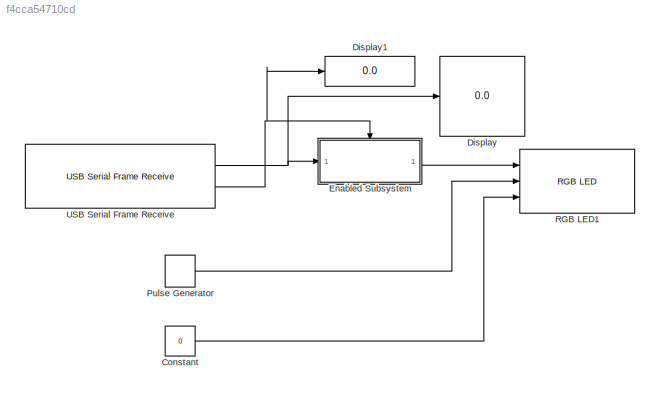
MODEL slx_f4cca54710cd
KIND model
CONFIG AbsTol = auto
CONFIG FixedStep = 0.1
CONFIG MaxStep = auto
CONFIG MinStep = auto
CONFIG RelTol = 1e-3
CONFIG SampleTimeConstraint = Unconstrained
CONFIG Solver = FixedStepAuto
CONFIG SolverMode = Auto
CONFIG SolverName = FixedStepAuto
CONFIG StartTime = 0.0
CONFIG StopTime = inf
BLOCK [Constant] Constant
  Value = 0
BLOCK [Display] Display
  Decimation = 1
  Ports = [1]
BLOCK [Display] Display1
  Decimation = 1
  Ports = [1]
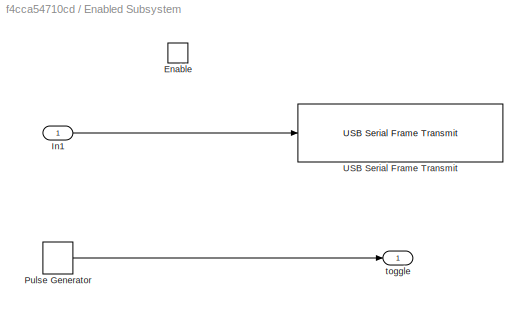
BLOCK [SubSystem] Enabled Subsystem
  Ports = [1, 1, 1]
  RequestExecContextInheritance = off
  TreatAsAtomicUnit = on
  Variant = off
BLOCK [EnablePort] Enabled Subsystem/Enable
  Ports = []
BLOCK [Inport] Enabled Subsystem/In1
  IconDisplay = Port number
BLOCK [DiscretePulseGenerator] Enabled Subsystem/Pulse Generator
  Amplitude = 100
  Ports = [0, 1]
  SampleTime = -1
BLOCK [Reference] Enabled Subsystem/USB Serial Frame Transmit  REF=frdmKL25Z/USB Serial Frame Transmit
  Ports = [1]
  SourceBlock = frdmKL25Z/USB Serial Frame Transmit
  SourceType = frdmUSBserialFrameTxClass
BLOCK [Outport] Enabled Subsystem/toggle
  IconDisplay = Port number
BLOCK [DiscretePulseGenerator] Pulse Generator
  Amplitude = 100
  Ports = [0, 1]
BLOCK [Reference] RGB LED1  REF=frdmkl25zlib/RGB LED
  Ports = [3]
  SourceBlock = frdmkl25zlib/RGB LED
  SourceType = RGB LED
BLOCK [Reference] USB Serial Frame Receive  REF=frdmKL25Z/USB Serial Frame Receive
  Ports = [0, 2]
  SourceBlock = frdmKL25Z/USB Serial Frame Receive
  SourceType = frdmUSBserialFrameRxClass
LINE Constant:1 -> RGB LED1:3
LINE Enabled Subsystem/In1:1 -> Enabled Subsystem/USB Serial Frame Transmit:1
LINE Enabled Subsystem/Pulse Generator:1 -> Enabled Subsystem/toggle:1
LINE Enabled Subsystem:1 -> RGB LED1:1
LINE Pulse Generator:1 -> RGB LED1:2
NET USB Serial Frame Receive:1 -> Display:1, Enabled Subsystem:1
NET USB Serial Frame Receive:2 -> Display1:1, Enabled Subsystem:enable
note: NET lines group one-source signal fan-out (src -> all destinations, sorted); 1:1 wires keep LINE
